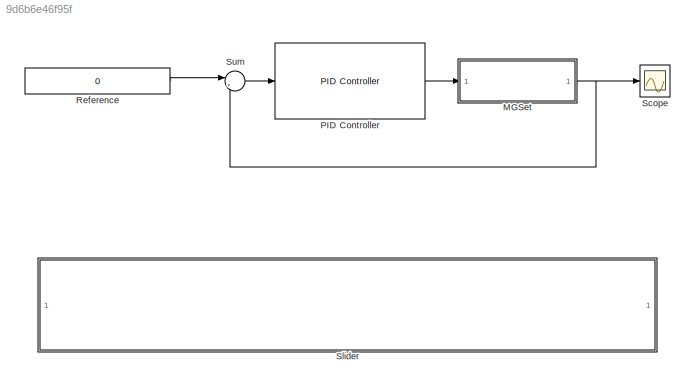
MODEL slx_9d6b6e46f95f
KIND model
CONFIG AbsTol = auto
CONFIG EnableMultiTasking = off
CONFIG FixedStep = auto
CONFIG MaxStep = auto
CONFIG MinStep = auto
CONFIG RelTol = 1e-3
CONFIG SampleTimeConstraint = Unconstrained
CONFIG Solver = FixedStepAuto
CONFIG SolverName = FixedStepAuto
CONFIG StartTime = 0.0
CONFIG StopTime = inf
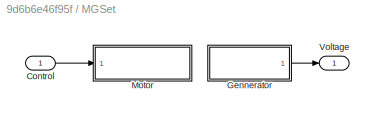
BLOCK [SubSystem] MGSet
  Ports = [1, 1]
  RequestExecContextInheritance = off
  Variant = off
BLOCK [Inport] MGSet/Control
  IconDisplay = Port number
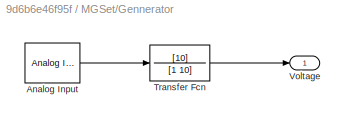
BLOCK [SubSystem] MGSet/Gennerator
  Ports = [0, 1]
  RequestExecContextInheritance = off
  Variant = off
BLOCK [Reference] MGSet/Gennerator/Analog Input  REF=sldrtlib/Analog Input
  AttributesFormatString = National Instruments\nPCIe-6363 [auto]
  Ports = [0, 1]
  SourceBlock = sldrtlib/Analog Input
  SourceProductBaseCode = WT
  SourceProductName = Simulink Desktop Real-Time
  SourceType = Simulink Desktop Real-Time Analog Input
BLOCK [TransferFcn] MGSet/Gennerator/Transfer Fcn
  Denominator = [1 10]
  Numerator = [10]
BLOCK [Outport] MGSet/Gennerator/Voltage
  IconDisplay = Port number
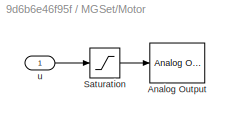
BLOCK [SubSystem] MGSet/Motor
  Ports = [1]
  RequestExecContextInheritance = off
  Variant = off
BLOCK [Reference] MGSet/Motor/Analog Output  REF=sldrtlib/Analog Output
  AttributesFormatString = National Instruments\nPCIe-6363 [auto]
  Ports = [1]
  SourceBlock = sldrtlib/Analog Output
  SourceProductBaseCode = WT
  SourceProductName = Simulink Desktop Real-Time
  SourceType = Simulink Desktop Real-Time Analog Output
BLOCK [Saturate] MGSet/Motor/Saturation
  InputPortMap = u0
  LowerLimit = 0
  Ports = [1, 1]
  UpperLimit = 5
BLOCK [Inport] MGSet/Motor/u
  IconDisplay = Port number
BLOCK [Outport] MGSet/Voltage
  IconDisplay = Port number
BLOCK [Reference] PID Controller  REF=simulink/Continuous/PID Controller
  Ports = [1, 1]
  SourceBlock = simulink/Continuous/PID Controller
  SourceProductBaseCode = SL
  SourceProductName = Simulink
  SourceType = PID 1dof
BLOCK [Constant] Reference
  Value = 0
BLOCK [Scope] Scope
  NumInputPorts = 1
  Ports = [1]
  ScopeSpecificationString = Simulink.scopes.TimeScopeBlockCfg('CurrentConfiguration', extmgr.ConfigurationSet(extmgr.Configuration('Core','General UI',true),extmgr.Configuration('Core','Source UI',true),extmgr.Configuration('Sources','WiredSimulink',true),extmgr.Configuration('Visuals','Time Domain',true,'SerializedDisplays',{struct('MinYLimReal','-0.32056','MaxYLimReal','3.95716','YLabelReal','','MinYLimMag','0.00000','MaxY...<+1421ch>
BLOCK [SubSystem] Slider
  DialogController = hmiCreateDDGDialog
  IsWebBlock = on
  MaskHideContents = on
  Ports = []
  RequestExecContextInheritance = off
  Variant = off
BLOCK [Sum] Sum
  IconShape = round
  InputSameDT = off
  Inputs = |+-
  OutDataTypeStr = Inherit: Inherit via internal rule
  Ports = [2, 1]
  SaturateOnIntegerOverflow = off
LINE MGSet/Control:1 -> MGSet/Motor:1
LINE MGSet/Gennerator/Analog Input:1 -> MGSet/Gennerator/Transfer Fcn:1
LINE MGSet/Gennerator/Transfer Fcn:1 -> MGSet/Gennerator/Voltage:1
LINE MGSet/Gennerator:1 -> MGSet/Voltage:1
LINE MGSet/Motor/Saturation:1 -> MGSet/Motor/Analog Output:1
LINE MGSet/Motor/u:1 -> MGSet/Motor/Saturation:1
NET MGSet:1 -> Scope:1, Sum:2
LINE PID Controller:1 -> MGSet:1
LINE Reference:1 -> Sum:1
LINE Sum:1 -> PID Controller:1
note: NET lines group one-source signal fan-out (src -> all destinations, sorted); 1:1 wires keep LINE
